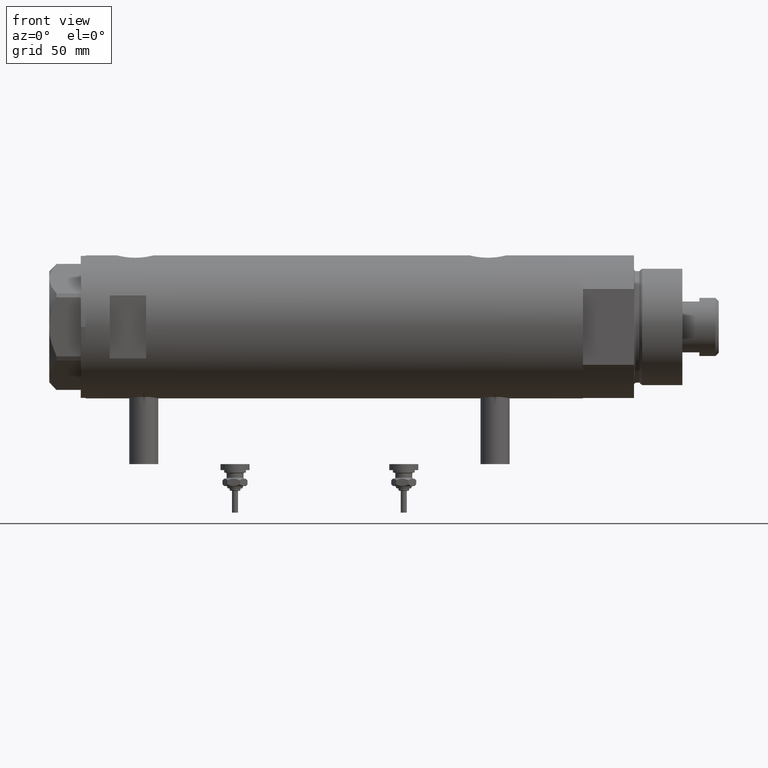
[diagram: clean part render]
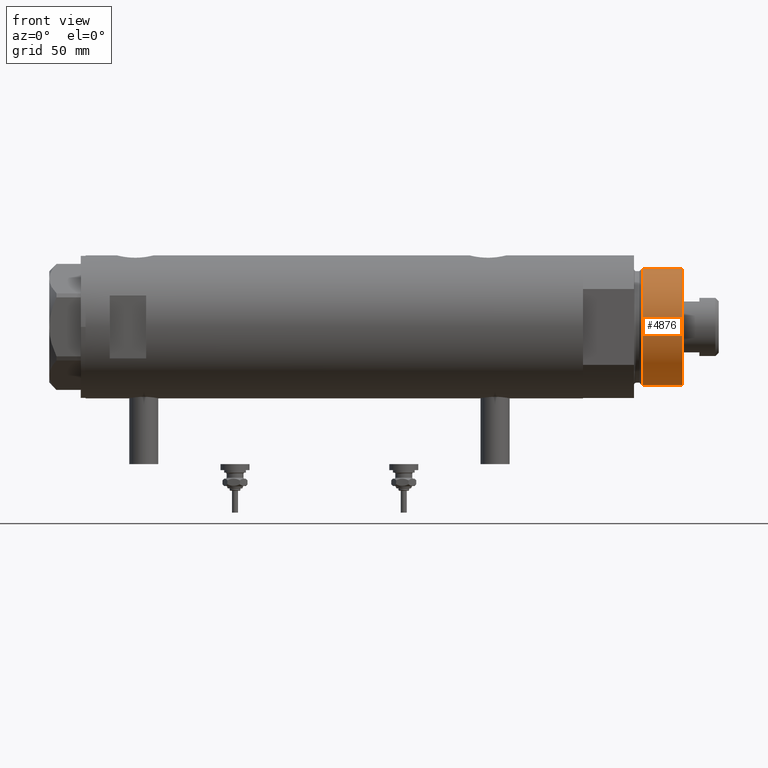
[diagram: same view with one face highlighted and labeled with its STEP entity id]
A machine part, front view. The second image highlights one B-rep face of the part: STEP entity #4876.
In plain terms, the highlighted cylindrical surface (partial cylindrical patch) has radius 24 mm, axis along (-1, -0, 0).
Its self-contained STEP definition (entity closure, byte-faithful):
#35 = FACE_OUTER_BOUND ( 'NONE', #4724, .T. ) ;
#241 = CARTESIAN_POINT ( 'NONE',  ( 24.00000000000000355, 2.939152317953648289E-15, 41.00000000000000000 ) ) ;
#499 = VERTEX_POINT ( 'NONE', #1084 ) ;
#513 = DIRECTION ( 'NONE',  ( -0.000000000000000000, -0.000000000000000000, -1.000000000000000000 ) ) ;
#624 = EDGE_CURVE ( 'NONE', #499, #5419, #4188, .T. ) ;
#631 = DIRECTION ( 'NONE',  ( 1.000000000000000000, 0.000000000000000000, 0.000000000000000000 ) ) ;
#706 = CARTESIAN_POINT ( 'NONE',  ( -24.00000000000000355, 0.000000000000000000, 41.00000000000000000 ) ) ;
#768 = DIRECTION ( 'NONE',  ( 1.000000000000000000, 0.000000000000000000, 0.000000000000000000 ) ) ;
#781 = EDGE_CURVE ( 'NONE', #810, #499, #3458, .T. ) ;
#810 = VERTEX_POINT ( 'NONE', #3427 ) ;
#1084 = CARTESIAN_POINT ( 'NONE',  ( -24.00000000000000355, 0.000000000000000000, 24.37384048104054557 ) ) ;
#1126 = DIRECTION ( 'NONE',  ( 0.000000000000000000, 0.000000000000000000, 1.000000000000000000 ) ) ;
#1156 = CARTESIAN_POINT ( 'NONE',  ( 0.000000000000000000, 0.000000000000000000, 41.00000000000000000 ) ) ;
#1405 = DIRECTION ( 'NONE',  ( -1.000000000000000000, 0.000000000000000000, 0.000000000000000000 ) ) ;
#1578 = AXIS2_PLACEMENT_3D ( 'NONE', #3760, #513, #1405 ) ;
#1758 = CARTESIAN_POINT ( 'NONE',  ( 0.000000000000000000, 0.000000000000000000, 24.37384048104054557 ) ) ;
#1935 = VERTEX_POINT ( 'NONE', #5703 ) ;
#2373 = VECTOR ( 'NONE', #2962, 1000.000000000000000 ) ;
#2405 = DIRECTION ( 'NONE',  ( -0.000000000000000000, -0.000000000000000000, -1.000000000000000000 ) ) ;
#2476 = AXIS2_PLACEMENT_3D ( 'NONE', #1758, #3575, #768 ) ;
#2873 = LINE ( 'NONE', #241, #2373 ) ;
#2962 = DIRECTION ( 'NONE',  ( -0.000000000000000000, -0.000000000000000000, -1.000000000000000000 ) ) ;
#3427 = CARTESIAN_POINT ( 'NONE',  ( -24.00000000000000355, 0.000000000000000000, 41.00000000000000000 ) ) ;
#3458 = LINE ( 'NONE', #706, #5552 ) ;
#3575 = DIRECTION ( 'NONE',  ( -0.000000000000000000, -0.000000000000000000, 1.000000000000000000 ) ) ;
#3760 = CARTESIAN_POINT ( 'NONE',  ( 0.000000000000000000, 0.000000000000000000, 41.00000000000000000 ) ) ;
#4006 = ORIENTED_EDGE ( 'NONE', *, *, #781, .T. ) ;
#4188 = CIRCLE ( 'NONE', #2476, 24.00000000000000355 ) ;
#4282 = ORIENTED_EDGE ( 'NONE', *, *, #5458, .F. ) ;
#4318 = ORIENTED_EDGE ( 'NONE', *, *, #5394, .F. ) ;
#4724 = EDGE_LOOP ( 'NONE', ( #4318, #4282, #4006, #5555 ) ) ;
#4876 = ADVANCED_FACE ( 'NONE', ( #35 ), #5518, .T. ) ;
#5054 = CIRCLE ( 'NONE', #5441, 24.00000000000000355 ) ;
#5204 = CARTESIAN_POINT ( 'NONE',  ( 24.00000000000000355, 2.939152317953648289E-15, 24.37384048104054557 ) ) ;
#5394 = EDGE_CURVE ( 'NONE', #1935, #5419, #2873, .T. ) ;
#5419 = VERTEX_POINT ( 'NONE', #5204 ) ;
#5441 = AXIS2_PLACEMENT_3D ( 'NONE', #1156, #1126, #631 ) ;
#5458 = EDGE_CURVE ( 'NONE', #810, #1935, #5054, .T. ) ;
#5518 = CYLINDRICAL_SURFACE ( 'NONE', #1578, 24.00000000000000355 ) ;
#5552 = VECTOR ( 'NONE', #2405, 1000.000000000000000 ) ;
#5555 = ORIENTED_EDGE ( 'NONE', *, *, #624, .T. ) ;
#5703 = CARTESIAN_POINT ( 'NONE',  ( 24.00000000000000355, 2.939152317953648289E-15, 41.00000000000000000 ) ) ;